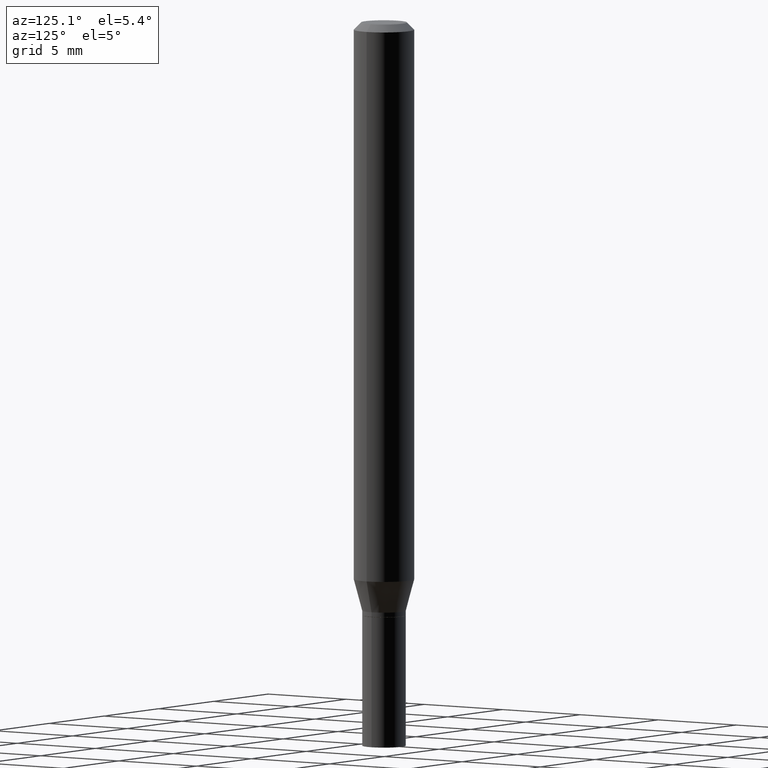
[diagram: clean part render]
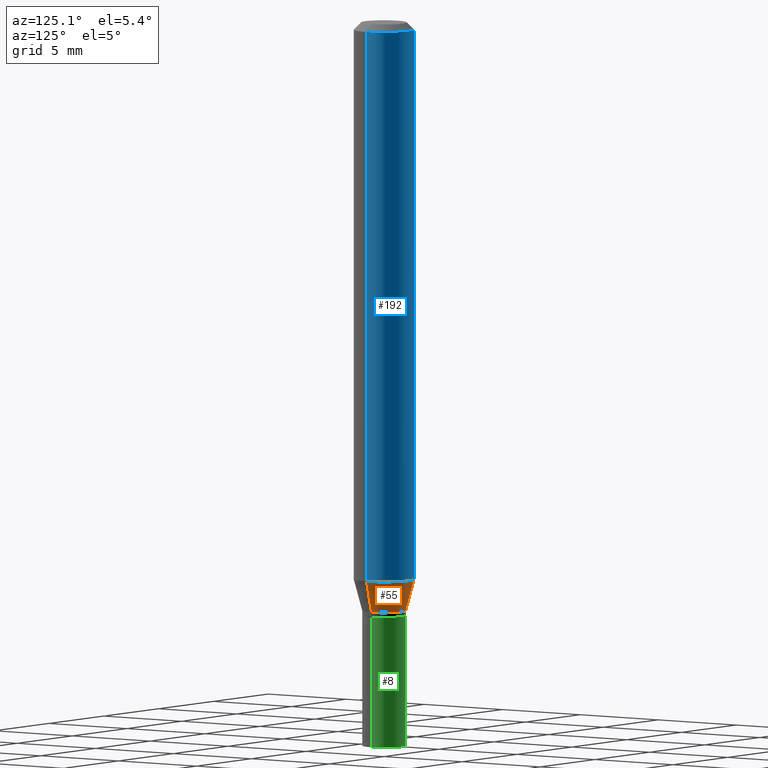
[diagram: same view with three faces highlighted in distinct colors, each labeled with its STEP entity id]
A machine part, auxiliary view with three faces highlighted in distinct colors.
Their STEP definitions:

[orange] entity #55 — the highlighted conical surface has half-angle 15 deg.
#6 = EDGE_CURVE ( 'NONE', #104, #147, #118, .T. ) ;
#21 = CARTESIAN_POINT ( 'NONE',  ( 0.04500000000000019262, -4.573840553884520788E-15, -1.220000000000000195 ) ) ;
#22 = DIRECTION ( 'NONE',  ( -2.445468806185136597E-29, 3.491481338843145583E-15, 1.000000000000000000 ) ) ;
#55 = ADVANCED_FACE ( 'NONE', ( #145 ), #274, .T. ) ;
#62 = CARTESIAN_POINT ( 'NONE',  ( 2.983471943545866670E-29, -4.259607233388637524E-15, -1.220000000000000195 ) ) ;
#69 = EDGE_CURVE ( 'NONE', #308, #104, #228, .T. ) ;
#98 = CARTESIAN_POINT ( 'NONE',  ( 2.823756201468233313E-29, -4.031575482759418834E-15, -1.154689110867545443 ) ) ;
#102 = CARTESIAN_POINT ( 'NONE',  ( -0.04500000000000019262, -3.763674637602973398E-15, -1.220000000000000195 ) ) ;
#104 = VERTEX_POINT ( 'NONE', #102 ) ;
#115 = DIRECTION ( 'NONE',  ( -2.445468806185136597E-29, 3.491481338843145583E-15, 1.000000000000000000 ) ) ;
#118 = LINE ( 'NONE', #217, #263 ) ;
#122 = EDGE_CURVE ( 'NONE', #185, #147, #180, .T. ) ;
#128 = EDGE_CURVE ( 'NONE', #308, #185, #341, .T. ) ;
#134 = VECTOR ( 'NONE', #167, 39.37007874015748143 ) ;
#145 = FACE_OUTER_BOUND ( 'NONE', #421, .T. ) ;
#147 = VERTEX_POINT ( 'NONE', #339 ) ;
#150 = DIRECTION ( 'NONE',  ( 1.000000000000000000, -6.982962677686259611E-15, 0.000000000000000000 ) ) ;
#167 = DIRECTION ( 'NONE',  ( 0.2588190451025205174, 1.565188264969628476E-15, 0.9659258262890684232 ) ) ;
#180 = CIRCLE ( 'NONE', #301, 0.06250000000000000000 ) ;
#185 = VERTEX_POINT ( 'NONE', #422 ) ;
#196 = AXIS2_PLACEMENT_3D ( 'NONE', #286, #115, #150 ) ;
#215 = CARTESIAN_POINT ( 'NONE',  ( 0.04500000000000019262, -4.573840553884520788E-15, -1.220000000000000195 ) ) ;
#217 = CARTESIAN_POINT ( 'NONE',  ( -0.04500000000000019262, -3.939863002296591368E-15, -1.220000000000000195 ) ) ;
#228 = CIRCLE ( 'NONE', #455, 0.04500000000000019262 ) ;
#230 = ORIENTED_EDGE ( 'NONE', *, *, #122, .F. ) ;
#263 = VECTOR ( 'NONE', #363, 39.37007874015748143 ) ;
#274 = CONICAL_SURFACE ( 'NONE', #196, 0.04500000000000019262, 0.2617993877991491858 ) ;
#278 = DIRECTION ( 'NONE',  ( -2.445468806185136597E-29, 3.491481338843145583E-15, 1.000000000000000000 ) ) ;
#286 = CARTESIAN_POINT ( 'NONE',  ( 2.983471943545866670E-29, -4.259607233388637524E-15, -1.220000000000000195 ) ) ;
#301 = AXIS2_PLACEMENT_3D ( 'NONE', #98, #278, #420 ) ;
#307 = DIRECTION ( 'NONE',  ( 1.000000000000000000, -6.982962677686259611E-15, 0.000000000000000000 ) ) ;
#308 = VERTEX_POINT ( 'NONE', #215 ) ;
#339 = CARTESIAN_POINT ( 'NONE',  ( -0.06250000000000000000, -3.587486272909356218E-15, -1.154689110867545443 ) ) ;
#341 = LINE ( 'NONE', #21, #134 ) ;
#363 = DIRECTION ( 'NONE',  ( -0.2588190451025205174, 5.211531920934544731E-15, 0.9659258262890684232 ) ) ;
#420 = DIRECTION ( 'NONE',  ( 1.000000000000000000, -6.982962677686270655E-15, 0.000000000000000000 ) ) ;
#421 = EDGE_LOOP ( 'NONE', ( #440, #453, #230, #456 ) ) ;
#422 = CARTESIAN_POINT ( 'NONE',  ( 0.06250000000000000000, -4.468010650114809714E-15, -1.154689110867545443 ) ) ;
#440 = ORIENTED_EDGE ( 'NONE', *, *, #69, .T. ) ;
#453 = ORIENTED_EDGE ( 'NONE', *, *, #6, .T. ) ;
#455 = AXIS2_PLACEMENT_3D ( 'NONE', #62, #22, #307 ) ;
#456 = ORIENTED_EDGE ( 'NONE', *, *, #128, .F. ) ;

[blue] entity #192 — the highlighted cylindrical surface (edge-blend (fillet) strip) has radius 1.5875 mm, axis along (-0, 0, 1).
#1 = ORIENTED_EDGE ( 'NONE', *, *, #122, .T. ) ;
#9 = AXIS2_PLACEMENT_3D ( 'NONE', #100, #131, #269 ) ;
#24 = CARTESIAN_POINT ( 'NONE',  ( 0.06250000000000000000, -4.364351673553916694E-16, 3.047610484872459871E-30 ) ) ;
#38 = LINE ( 'NONE', #289, #76 ) ;
#51 = DIRECTION ( 'NONE',  ( 1.000000000000000000, -6.982962677686266711E-15, 0.000000000000000000 ) ) ;
#76 = VECTOR ( 'NONE', #396, 39.37007874015748143 ) ;
#98 = CARTESIAN_POINT ( 'NONE',  ( 2.823756201468233313E-29, -4.031575482759418834E-15, -1.154689110867545443 ) ) ;
#100 = CARTESIAN_POINT ( 'NONE',  ( 0.000000000000000000, 0.000000000000000000, 0.000000000000000000 ) ) ;
#106 = EDGE_LOOP ( 'NONE', ( #1, #139, #355, #206 ) ) ;
#114 = DIRECTION ( 'NONE',  ( -2.445468806185136597E-29, 3.491481338843145583E-15, 1.000000000000000000 ) ) ;
#122 = EDGE_CURVE ( 'NONE', #185, #147, #180, .T. ) ;
#131 = DIRECTION ( 'NONE',  ( -2.445468806185136597E-29, 3.491481338843145583E-15, 1.000000000000000000 ) ) ;
#139 = ORIENTED_EDGE ( 'NONE', *, *, #256, .T. ) ;
#147 = VERTEX_POINT ( 'NONE', #339 ) ;
#166 = FACE_OUTER_BOUND ( 'NONE', #106, .T. ) ;
#174 = EDGE_CURVE ( 'NONE', #185, #311, #349, .T. ) ;
#180 = CIRCLE ( 'NONE', #301, 0.06250000000000000000 ) ;
#185 = VERTEX_POINT ( 'NONE', #422 ) ;
#192 = ADVANCED_FACE ( 'NONE', ( #166 ), #299, .T. ) ;
#206 = ORIENTED_EDGE ( 'NONE', *, *, #174, .F. ) ;
#229 = AXIS2_PLACEMENT_3D ( 'NONE', #282, #114, #51 ) ;
#237 = VERTEX_POINT ( 'NONE', #305 ) ;
#256 = EDGE_CURVE ( 'NONE', #147, #237, #38, .T. ) ;
#269 = DIRECTION ( 'NONE',  ( 1.000000000000000000, -6.982962677686266711E-15, 4.876176775795935793E-29 ) ) ;
#278 = DIRECTION ( 'NONE',  ( -2.445468806185136597E-29, 3.491481338843145583E-15, 1.000000000000000000 ) ) ;
#282 = CARTESIAN_POINT ( 'NONE',  ( 3.668203209277705088E-31, -5.237222008264718399E-17, -0.01499999999999999944 ) ) ;
#289 = CARTESIAN_POINT ( 'NONE',  ( -0.06250000000000000000, 4.440892098500626162E-16, -3.074334431409316114E-30 ) ) ;
#299 = CYLINDRICAL_SURFACE ( 'NONE', #9, 0.06250000000000000000 ) ;
#301 = AXIS2_PLACEMENT_3D ( 'NONE', #98, #278, #420 ) ;
#305 = CARTESIAN_POINT ( 'NONE',  ( -0.06250000000000000000, -1.597884641570970340E-15, -0.01499999999999999944 ) ) ;
#311 = VERTEX_POINT ( 'NONE', #425 ) ;
#326 = VECTOR ( 'NONE', #457, 39.37007874015748143 ) ;
#339 = CARTESIAN_POINT ( 'NONE',  ( -0.06250000000000000000, -3.587486272909356218E-15, -1.154689110867545443 ) ) ;
#349 = LINE ( 'NONE', #24, #326 ) ;
#355 = ORIENTED_EDGE ( 'NONE', *, *, #408, .F. ) ;
#375 = CIRCLE ( 'NONE', #229, 0.06250000000000000000 ) ;
#396 = DIRECTION ( 'NONE',  ( -2.445468806185136877E-29, 3.491481338843145188E-15, 1.000000000000000000 ) ) ;
#408 = EDGE_CURVE ( 'NONE', #311, #237, #375, .T. ) ;
#420 = DIRECTION ( 'NONE',  ( 1.000000000000000000, -6.982962677686270655E-15, 0.000000000000000000 ) ) ;
#422 = CARTESIAN_POINT ( 'NONE',  ( 0.06250000000000000000, -4.468010650114809714E-15, -1.154689110867545443 ) ) ;
#425 = CARTESIAN_POINT ( 'NONE',  ( 0.06250000000000000000, -4.888073874380388472E-16, -0.01499999999999999944 ) ) ;
#457 = DIRECTION ( 'NONE',  ( -2.445468806185136877E-29, 3.491481338843145188E-15, 1.000000000000000000 ) ) ;

[green] entity #8 — the highlighted cylindrical surface (edge-blend (fillet) strip) has radius 1.143 mm, axis along (-0, 0, 1).
#8 = ADVANCED_FACE ( 'NONE', ( #442 ), #377, .T. ) ;
#39 = DIRECTION ( 'NONE',  ( -2.445468806185136597E-29, 3.491481338843145583E-15, 1.000000000000000000 ) ) ;
#43 = VERTEX_POINT ( 'NONE', #181 ) ;
#59 = DIRECTION ( 'NONE',  ( 1.000000000000000000, -6.982962677686269077E-15, 0.000000000000000000 ) ) ;
#72 = LINE ( 'NONE', #109, #403 ) ;
#84 = DIRECTION ( 'NONE',  ( 1.000000000000000000, -6.982962677686266711E-15, 4.876176775795935793E-29 ) ) ;
#95 = CIRCLE ( 'NONE', #103, 0.04499999999999999833 ) ;
#103 = AXIS2_PLACEMENT_3D ( 'NONE', #285, #429, #211 ) ;
#109 = CARTESIAN_POINT ( 'NONE',  ( 0.04499999999999999833, -3.142333204958819823E-16, 2.194279549108170967E-30 ) ) ;
#111 = ORIENTED_EDGE ( 'NONE', *, *, #284, .T. ) ;
#112 = CARTESIAN_POINT ( 'NONE',  ( 0.04499999999999999833, -5.551455328760600652E-15, -1.500000000000000222 ) ) ;
#113 = VERTEX_POINT ( 'NONE', #199 ) ;
#146 = CARTESIAN_POINT ( 'NONE',  ( -0.04499999999999999833, 3.197442310920450718E-16, -2.213520790614707560E-30 ) ) ;
#149 = CIRCLE ( 'NONE', #251, 0.04499999999999999833 ) ;
#162 = EDGE_CURVE ( 'NONE', #293, #43, #149, .T. ) ;
#181 = CARTESIAN_POINT ( 'NONE',  ( -0.04499999999999999833, -4.446127796428848702E-15, -1.500000000000000222 ) ) ;
#182 = LINE ( 'NONE', #146, #374 ) ;
#187 = CARTESIAN_POINT ( 'NONE',  ( 0.04499999999999999833, -4.608755367272951648E-15, -1.230000000000000204 ) ) ;
#199 = CARTESIAN_POINT ( 'NONE',  ( -0.04499999999999999833, -4.446127796428848702E-15, -1.230000000000000204 ) ) ;
#200 = CARTESIAN_POINT ( 'NONE',  ( 3.668203209277704895E-29, -5.237222008264718177E-15, -1.500000000000000222 ) ) ;
#211 = DIRECTION ( 'NONE',  ( 1.000000000000000000, -6.982962677686269077E-15, 0.000000000000000000 ) ) ;
#221 = ORIENTED_EDGE ( 'NONE', *, *, #162, .T. ) ;
#240 = AXIS2_PLACEMENT_3D ( 'NONE', #288, #39, #84 ) ;
#251 = AXIS2_PLACEMENT_3D ( 'NONE', #200, #383, #59 ) ;
#265 = EDGE_CURVE ( 'NONE', #293, #463, #72, .T. ) ;
#284 = EDGE_CURVE ( 'NONE', #43, #113, #182, .T. ) ;
#285 = CARTESIAN_POINT ( 'NONE',  ( 3.007926631607718216E-29, -4.294522046777069173E-15, -1.230000000000000204 ) ) ;
#287 = DIRECTION ( 'NONE',  ( -2.445468806185136877E-29, 3.491481338843145188E-15, 1.000000000000000000 ) ) ;
#288 = CARTESIAN_POINT ( 'NONE',  ( 0.000000000000000000, 0.000000000000000000, 0.000000000000000000 ) ) ;
#293 = VERTEX_POINT ( 'NONE', #112 ) ;
#315 = ORIENTED_EDGE ( 'NONE', *, *, #407, .F. ) ;
#329 = ORIENTED_EDGE ( 'NONE', *, *, #265, .F. ) ;
#374 = VECTOR ( 'NONE', #287, 39.37007874015748143 ) ;
#377 = CYLINDRICAL_SURFACE ( 'NONE', #240, 0.04499999999999999833 ) ;
#383 = DIRECTION ( 'NONE',  ( -2.445468806185136597E-29, 3.491481338843145583E-15, 1.000000000000000000 ) ) ;
#403 = VECTOR ( 'NONE', #466, 39.37007874015748143 ) ;
#407 = EDGE_CURVE ( 'NONE', #463, #113, #95, .T. ) ;
#429 = DIRECTION ( 'NONE',  ( -2.445468806185136597E-29, 3.491481338843145583E-15, 1.000000000000000000 ) ) ;
#434 = EDGE_LOOP ( 'NONE', ( #221, #111, #315, #329 ) ) ;
#442 = FACE_OUTER_BOUND ( 'NONE', #434, .T. ) ;
#463 = VERTEX_POINT ( 'NONE', #187 ) ;
#466 = DIRECTION ( 'NONE',  ( -2.445468806185136877E-29, 3.491481338843145188E-15, 1.000000000000000000 ) ) ;